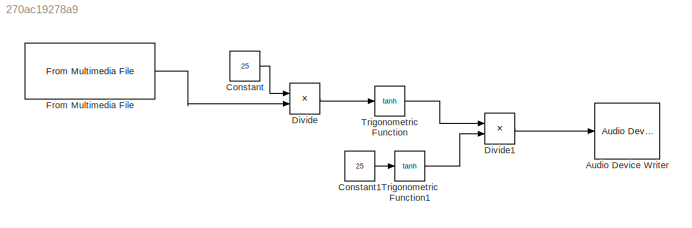
MODEL slx_270ac19278a9
KIND model
CONFIG AbsTol = auto
CONFIG EnableMultiTasking = off
CONFIG FixedStep = auto
CONFIG MaxStep = auto
CONFIG MinStep = auto
CONFIG RelTol = 1e-3
CONFIG SampleTimeConstraint = Unconstrained
CONFIG Solver = FixedStepDiscrete
CONFIG SolverName = FixedStepDiscrete
CONFIG StartTime = 0.0
CONFIG StopTime = inf
BLOCK [Reference] Audio Device Writer  REF=dspsnks4/Audio Device
Writer
  Ports = [1]
  SourceBlock = dspsnks4/Audio Device\nWriter
  SourceProductBaseCode = DS
  SourceProductName = DSP System Toolbox
  SourceType = Audio Device Writer
BLOCK [Constant] Constant
  Value = 25
BLOCK [Constant] Constant1
  Value = 25
BLOCK [Product] Divide
  InputSameDT = off
  Inputs = **
  OutDataTypeStr = Inherit: Inherit via internal rule
  Ports = [2, 1]
  RndMeth = Floor
  SaturateOnIntegerOverflow = off
BLOCK [Product] Divide1
  InputSameDT = off
  Inputs = */
  OutDataTypeStr = Inherit: Inherit via internal rule
  Ports = [2, 1]
  RndMeth = Floor
  SaturateOnIntegerOverflow = off
BLOCK [Reference] From Multimedia File  REF=dspvision/From Multimedia File
  Ports = [0, 1]
  SourceBlock = dspvision/From Multimedia File
  SourceProductBaseCode = DS
  SourceProductName = DSP System Toolbox
  SourceType = From Multimedia File
BLOCK [Trigonometry] Trigonometric Function
  Operator = tanh
  Ports = [1, 1]
BLOCK [Trigonometry] Trigonometric Function1
  Operator = tanh
  Ports = [1, 1]
LINE Constant1:1 -> Trigonometric Function1:1
LINE Constant:1 -> Divide:1
LINE Divide1:1 -> Audio Device Writer:1
LINE Divide:1 -> Trigonometric Function:1
LINE From Multimedia File:1 -> Divide:2
LINE Trigonometric Function1:1 -> Divide1:2
LINE Trigonometric Function:1 -> Divide1:1
